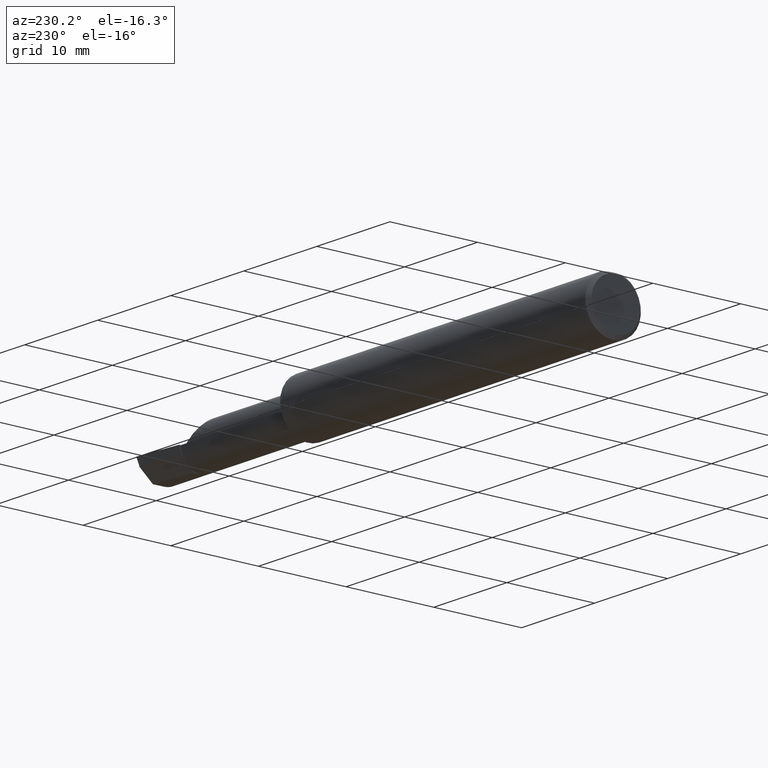
[diagram: clean part render]
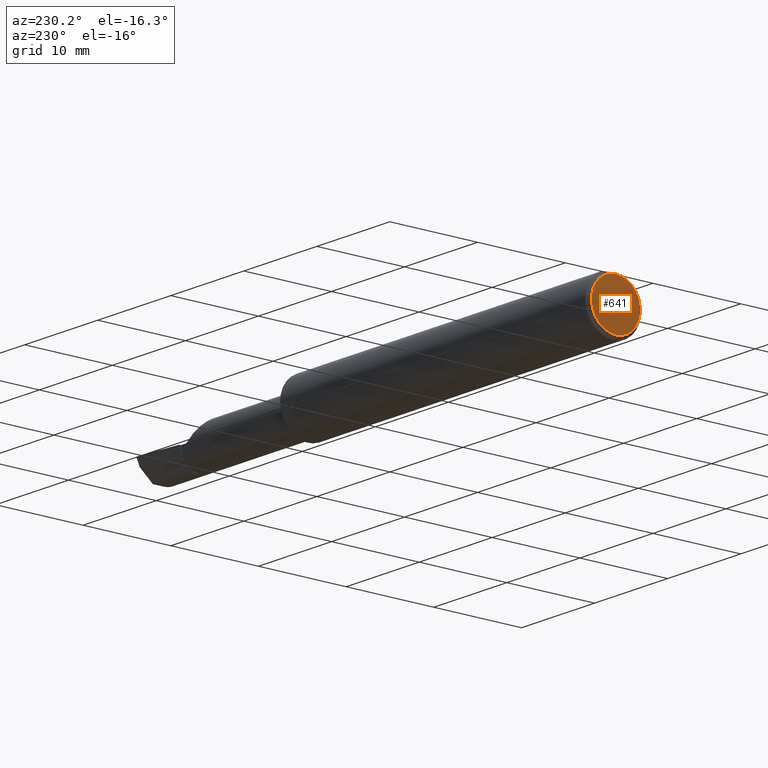
[diagram: same view with one face highlighted and labeled with its STEP entity id]
A machine part, auxiliary view. The second image highlights one B-rep face of the part: STEP entity #641.
In plain terms, the highlighted planar face has unit normal (1, 0, 0).
Its self-contained STEP definition (entity closure, byte-faithful):
#29 = VERTEX_POINT ( 'NONE', #263 ) ;
#48 = DIRECTION ( 'NONE',  ( 0.000000000000000000, 0.000000000000000000, -1.000000000000000000 ) ) ;
#163 = FACE_OUTER_BOUND ( 'NONE', #1153, .T. ) ;
#182 = EDGE_CURVE ( 'NONE', #300, #29, #367, .T. ) ;
#210 = DIRECTION ( 'NONE',  ( 0.000000000000000000, 0.000000000000000000, -1.000000000000000000 ) ) ;
#263 = CARTESIAN_POINT ( 'NONE',  ( 0.000000000000000000, 1.437123018799421600E-17, 0.1098500000000004473 ) ) ;
#300 = VERTEX_POINT ( 'NONE', #997 ) ;
#367 = CIRCLE ( 'NONE', #1234, 0.1098500000000004473 ) ;
#444 = AXIS2_PLACEMENT_3D ( 'NONE', #1156, #816, #210 ) ;
#454 = EDGE_CURVE ( 'NONE', #29, #300, #1260, .T. ) ;
#468 = DIRECTION ( 'NONE',  ( 1.000000000000000000, 0.000000000000000000, 0.000000000000000000 ) ) ;
#641 = ADVANCED_FACE ( 'NONE', ( #163 ), #953, .F. ) ;
#654 = AXIS2_PLACEMENT_3D ( 'NONE', #847, #468, #48 ) ;
#816 = DIRECTION ( 'NONE',  ( -1.000000000000000000, -0.000000000000000000, -0.000000000000000000 ) ) ;
#829 = ORIENTED_EDGE ( 'NONE', *, *, #182, .T. ) ;
#847 = CARTESIAN_POINT ( 'NONE',  ( 0.000000000000000000, 0.000000000000000000, 0.000000000000000000 ) ) ;
#869 = DIRECTION ( 'NONE',  ( -1.000000000000000000, -0.000000000000000000, -0.000000000000000000 ) ) ;
#941 = ORIENTED_EDGE ( 'NONE', *, *, #454, .T. ) ;
#953 = PLANE ( 'NONE',  #654 ) ;
#997 = CARTESIAN_POINT ( 'NONE',  ( 0.000000000000000000, 0.000000000000000000, -0.1098500000000004473 ) ) ;
#1085 = DIRECTION ( 'NONE',  ( 0.000000000000000000, 0.000000000000000000, -1.000000000000000000 ) ) ;
#1153 = EDGE_LOOP ( 'NONE', ( #829, #941 ) ) ;
#1156 = CARTESIAN_POINT ( 'NONE',  ( 0.000000000000000000, 0.000000000000000000, 0.000000000000000000 ) ) ;
#1192 = CARTESIAN_POINT ( 'NONE',  ( 0.000000000000000000, 0.000000000000000000, 0.000000000000000000 ) ) ;
#1234 = AXIS2_PLACEMENT_3D ( 'NONE', #1192, #869, #1085 ) ;
#1260 = CIRCLE ( 'NONE', #444, 0.1098500000000004473 ) ;